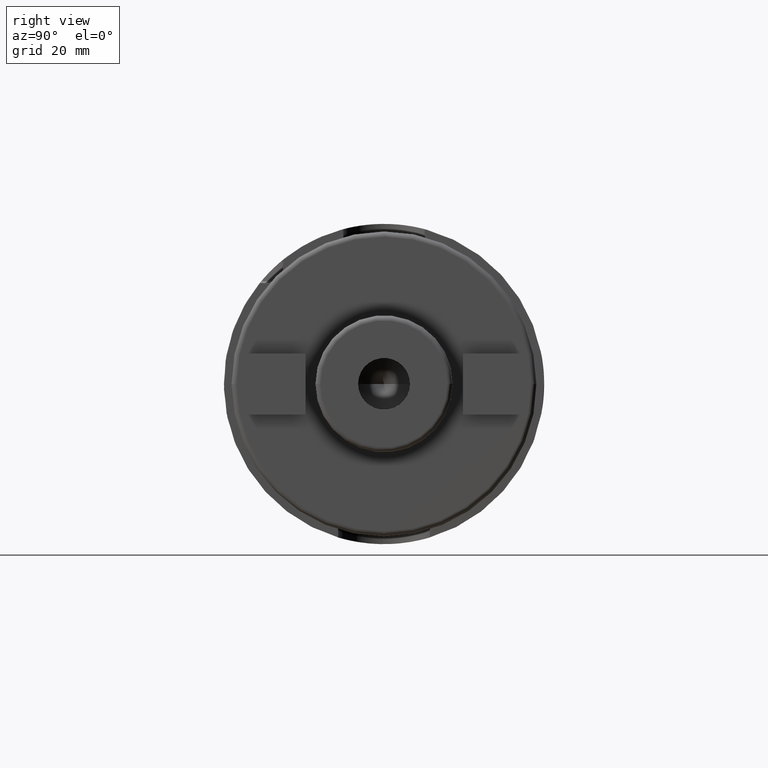
[diagram: clean part render]
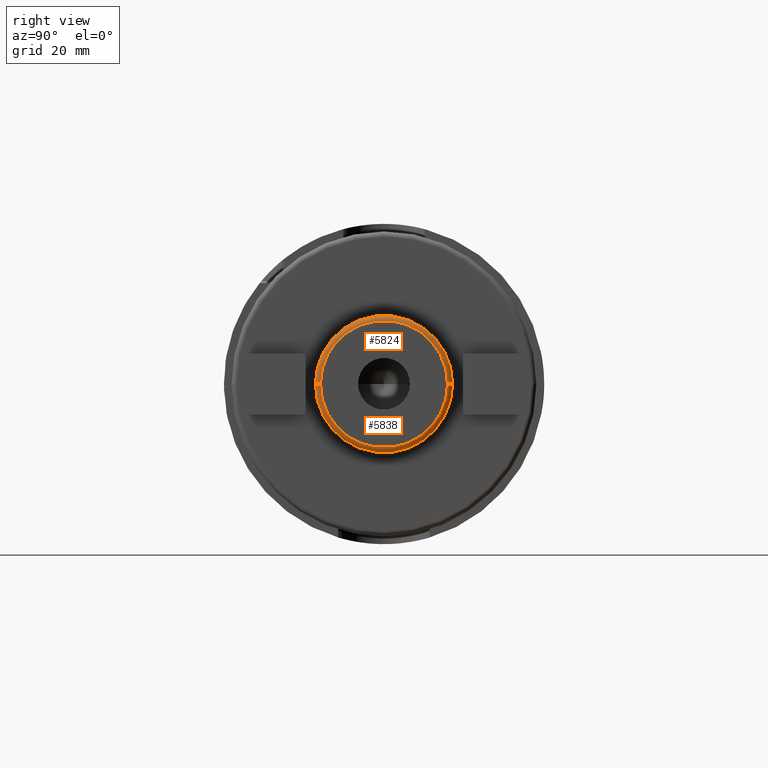
[diagram: same view with one multi-face feature highlighted, each face labeled with its STEP entity id]
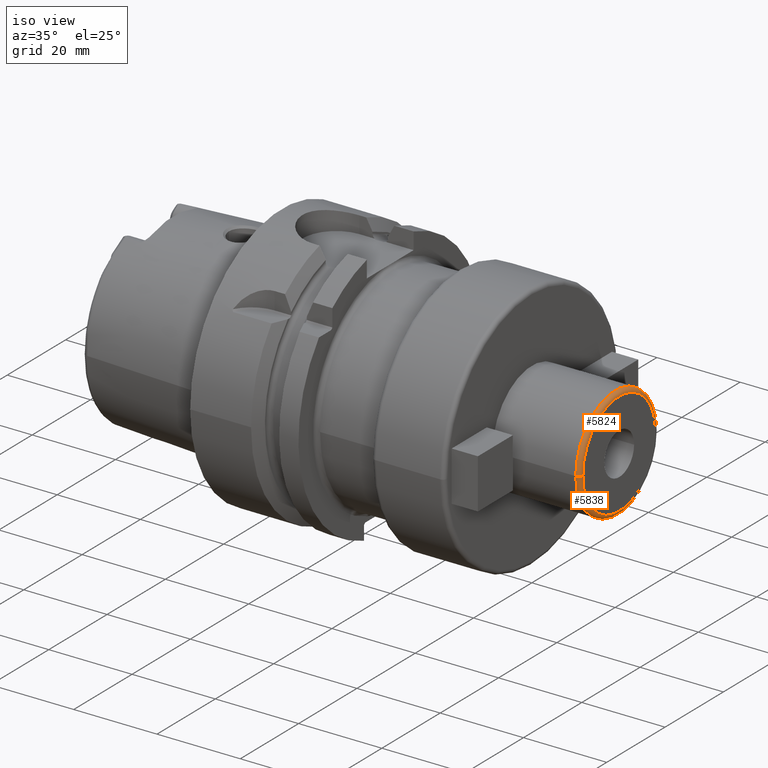
[diagram: same view with one multi-face feature highlighted, each face labeled with its STEP entity id]
A machine part, right view. The highlighted faces form ONE feature: a constant-radius fillet chain: 2 tangent blend faces with common blend radius 1 mm. The faces share edges in the B-rep.
A second angle (iso view) of the same feature is appended — it is thin or edge-on in the first view.
Their STEP definitions:
[1] entity #5824 (Torus):
#2205=CARTESIAN_POINT('',(8.E1,0.E0,0.E0));
#2206=DIRECTION('',(-1.E0,0.E0,0.E0));
#2207=DIRECTION('',(0.E0,-1.E0,0.E0));
#2208=AXIS2_PLACEMENT_3D('',#2205,#2206,#2207);
#2210=CARTESIAN_POINT('',(8.E1,-1.25E1,-1.270324123670E-11));
#2211=DIRECTION('',(0.E0,-1.016259992825E-12,1.E0));
#2212=DIRECTION('',(0.E0,-1.E0,-1.016259992825E-12));
#2213=AXIS2_PLACEMENT_3D('',#2210,#2211,#2212);
#2215=CARTESIAN_POINT('',(8.E1,1.25E1,1.270246408058E-11));
#2216=DIRECTION('',(0.E0,1.016197542780E-12,-1.E0));
#2217=DIRECTION('',(0.E0,1.E0,1.016197542780E-12));
#2218=AXIS2_PLACEMENT_3D('',#2215,#2216,#2217);
#2238=CARTESIAN_POINT('',(8.1E1,0.E0,0.E0));
#2239=DIRECTION('',(-1.E0,0.E0,0.E0));
#2240=DIRECTION('',(0.E0,-1.E0,0.E0));
#2241=AXIS2_PLACEMENT_3D('',#2238,#2239,#2240);
#3289=CARTESIAN_POINT('',(8.E1,1.35E1,0.E0));
#3290=CARTESIAN_POINT('',(8.E1,-1.35E1,0.E0));
#3291=VERTEX_POINT('',#3289);
#3292=VERTEX_POINT('',#3290);
#3293=CARTESIAN_POINT('',(8.1E1,1.25E1,0.E0));
#3294=CARTESIAN_POINT('',(8.1E1,-1.25E1,0.E0));
#3295=VERTEX_POINT('',#3293);
#3296=VERTEX_POINT('',#3294);
#5810=CARTESIAN_POINT('',(8.E1,0.E0,0.E0));
#5811=DIRECTION('',(1.E0,0.E0,0.E0));
#5812=DIRECTION('',(0.E0,-9.999850067495E-1,-5.475972632293E-3));
#5813=AXIS2_PLACEMENT_3D('',#5810,#5811,#5812);
#5814=TOROIDAL_SURFACE('',#5813,1.25E1,1.E0);
#5815=ORIENTED_EDGE('',*,*,#5800,.T.);
#5817=ORIENTED_EDGE('',*,*,#5816,.T.);
#5819=ORIENTED_EDGE('',*,*,#5818,.F.);
#5821=ORIENTED_EDGE('',*,*,#5820,.F.);
#5822=EDGE_LOOP('',(#5815,#5817,#5819,#5821));
#5823=FACE_OUTER_BOUND('',#5822,.F.);
#5824=ADVANCED_FACE('',(#5823),#5814,.T.);
#2209=CIRCLE('',#2208,1.35E1);
#2214=CIRCLE('',#2213,1.E0);
#2219=CIRCLE('',#2218,1.E0);
#2242=CIRCLE('',#2241,1.25E1);
#5800=EDGE_CURVE('',#3292,#3291,#2209,.T.);
#5816=EDGE_CURVE('',#3291,#3295,#2219,.T.);
#5818=EDGE_CURVE('',#3296,#3295,#2242,.T.);
#5820=EDGE_CURVE('',#3292,#3296,#2214,.T.);
[2] entity #5838 (Torus):
#2210=CARTESIAN_POINT('',(8.E1,-1.25E1,-1.270324123670E-11));
#2211=DIRECTION('',(0.E0,-1.016259992825E-12,1.E0));
#2212=DIRECTION('',(0.E0,-1.E0,-1.016259992825E-12));
#2213=AXIS2_PLACEMENT_3D('',#2210,#2211,#2212);
#2215=CARTESIAN_POINT('',(8.E1,1.25E1,1.270246408058E-11));
#2216=DIRECTION('',(0.E0,1.016197542780E-12,-1.E0));
#2217=DIRECTION('',(0.E0,1.E0,1.016197542780E-12));
#2218=AXIS2_PLACEMENT_3D('',#2215,#2216,#2217);
#2220=CARTESIAN_POINT('',(8.E1,0.E0,0.E0));
#2221=DIRECTION('',(-1.E0,0.E0,0.E0));
#2222=DIRECTION('',(0.E0,1.E0,0.E0));
#2223=AXIS2_PLACEMENT_3D('',#2220,#2221,#2222);
#2233=CARTESIAN_POINT('',(8.1E1,0.E0,0.E0));
#2234=DIRECTION('',(-1.E0,0.E0,0.E0));
#2235=DIRECTION('',(0.E0,1.E0,0.E0));
#2236=AXIS2_PLACEMENT_3D('',#2233,#2234,#2235);
#3289=CARTESIAN_POINT('',(8.E1,1.35E1,0.E0));
#3290=CARTESIAN_POINT('',(8.E1,-1.35E1,0.E0));
#3291=VERTEX_POINT('',#3289);
#3292=VERTEX_POINT('',#3290);
#3293=CARTESIAN_POINT('',(8.1E1,1.25E1,0.E0));
#3294=CARTESIAN_POINT('',(8.1E1,-1.25E1,0.E0));
#3295=VERTEX_POINT('',#3293);
#3296=VERTEX_POINT('',#3294);
#5825=CARTESIAN_POINT('',(8.E1,0.E0,0.E0));
#5826=DIRECTION('',(1.E0,0.E0,0.E0));
#5827=DIRECTION('',(0.E0,9.999850067495E-1,5.475972632293E-3));
#5828=AXIS2_PLACEMENT_3D('',#5825,#5826,#5827);
#5829=TOROIDAL_SURFACE('',#5828,1.25E1,1.E0);
#5831=ORIENTED_EDGE('',*,*,#5830,.T.);
#5832=ORIENTED_EDGE('',*,*,#5820,.T.);
#5834=ORIENTED_EDGE('',*,*,#5833,.F.);
#5835=ORIENTED_EDGE('',*,*,#5816,.F.);
#5836=EDGE_LOOP('',(#5831,#5832,#5834,#5835));
#5837=FACE_OUTER_BOUND('',#5836,.F.);
#5838=ADVANCED_FACE('',(#5837),#5829,.T.);
#2214=CIRCLE('',#2213,1.E0);
#2219=CIRCLE('',#2218,1.E0);
#2224=CIRCLE('',#2223,1.35E1);
#2237=CIRCLE('',#2236,1.25E1);
#5816=EDGE_CURVE('',#3291,#3295,#2219,.T.);
#5820=EDGE_CURVE('',#3292,#3296,#2214,.T.);
#5830=EDGE_CURVE('',#3291,#3292,#2224,.T.);
#5833=EDGE_CURVE('',#3295,#3296,#2237,.T.);